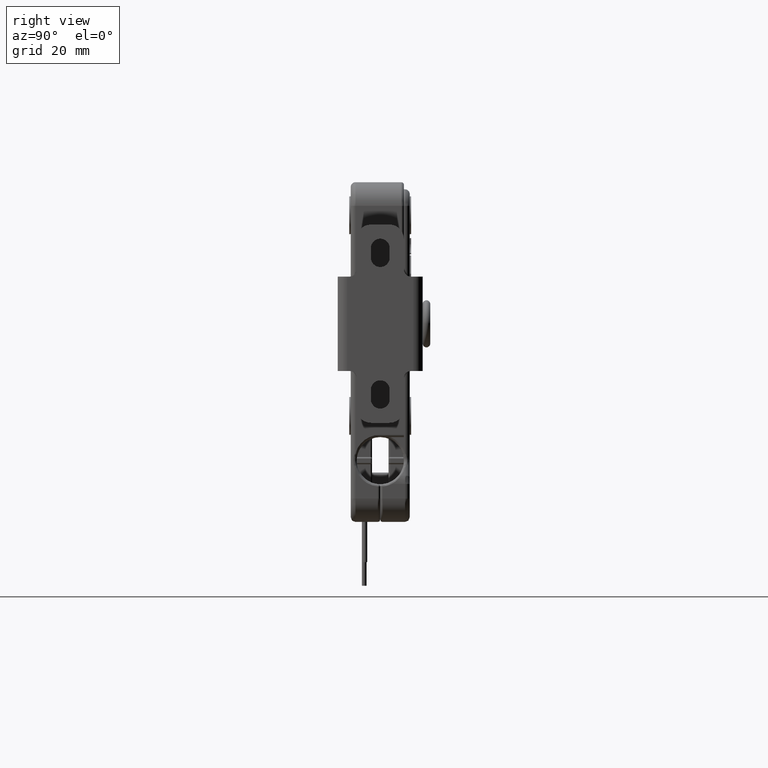
[diagram: clean part render]
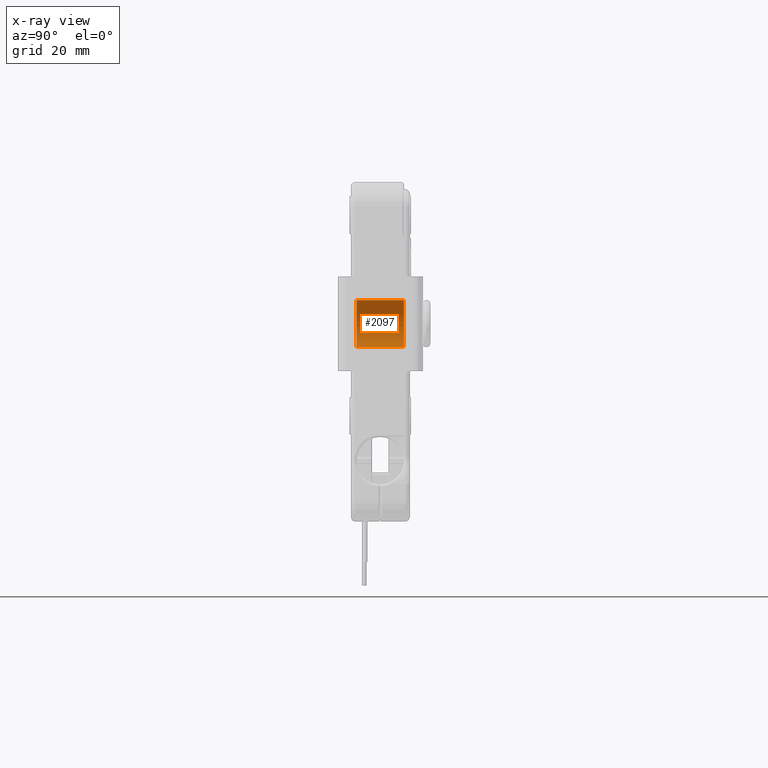
[diagram: x-ray — body ghosted, one internal face saturated and labeled with its STEP entity id]
A machine part, right view, then the same camera in x-ray: the body is ghosted and one INTERNAL B-rep face — a face not visible from any outside direction — is saturated and labeled: STEP entity #2097.
In plain terms, the highlighted cylindrical surface (edge-blend (fillet) strip) has radius 5 mm, axis along (-0, -1, -0).
Its self-contained STEP definition (entity closure, byte-faithful):
#2097=ADVANCED_FACE('',(#22218),#22217,.T.);
#22217=CYLINDRICAL_SURFACE('',#40840,5.00000000000E+00);
#22218=FACE_OUTER_BOUND('',#40841,.T.);
#40837=CARTESIAN_POINT('',(-3.35000000000E+01,-1.00125000000E+03,0.00000000000E+00));
#40838=DIRECTION('',(-0.00000000000E+00,-1.00000000000E+00,-0.00000000000E+00));
#40839=DIRECTION('',(-0.00000000000E+00,-0.00000000000E+00,-1.00000000000E+00));
#40840=AXIS2_PLACEMENT_3D('',#40837,#40838,#40839);
#40841=EDGE_LOOP('',(#52869,#52870,#52871,#52872));
#52869=ORIENTED_EDGE('',*,*,#55229,.T.);
#52870=ORIENTED_EDGE('',*,*,#59265,.T.);
#52871=ORIENTED_EDGE('',*,*,#55318,.F.);
#52872=ORIENTED_EDGE('',*,*,#59266,.F.);
#55229=EDGE_CURVE('',#69124,#69123,#69131,.T.);
#55318=EDGE_CURVE('',#69728,#69729,#69730,.T.);
#59265=EDGE_CURVE('',#69123,#69729,#95810,.T.);
#59266=EDGE_CURVE('',#69124,#69728,#95816,.T.);
#69123=VERTEX_POINT('',#105083);
#69124=VERTEX_POINT('',#105084);
#69131=CIRCLE('',#105092,5.00000000000E+00);
#69728=VERTEX_POINT('',#105471);
#69729=VERTEX_POINT('',#105472);
#69730=CIRCLE('',#105476,5.00000000000E+00);
#95810=(BOUNDED_CURVE() B_SPLINE_CURVE(1,(#121113,#121114),.UNSPECIFIED.,.F.,.F.) B_SPLINE_CURVE_WITH_KNOTS((2,2),(8.33333343261E-02,9.16666667006E-01),.UNSPECIFIED.) CURVE() GEOMETRIC_REPRESENTATION_ITEM() RATIONAL_B_SPLINE_CURVE((1.00000000000E+00,1.00000000000E+00)) REPRESENTATION_ITEM('') );
#95816=(BOUNDED_CURVE() B_SPLINE_CURVE(1,(#121115,#121116),.UNSPECIFIED.,.F.,.F.) B_SPLINE_CURVE_WITH_KNOTS((2,2),(8.33333333333E-02,9.16666666667E-01),.UNSPECIFIED.) CURVE() GEOMETRIC_REPRESENTATION_ITEM() RATIONAL_B_SPLINE_CURVE((7.50000000000E-01,7.50000000000E-01)) REPRESENTATION_ITEM('') );
#105083=CARTESIAN_POINT('',(-3.35000000000E+01,-1.25000000000E+00,-5.00000000000E+00));
#105084=CARTESIAN_POINT('',(-3.35000000000E+01,-1.25000000000E+00,5.00000000000E+00));
#105089=CARTESIAN_POINT('',(-3.35000000000E+01,-1.25000000000E+00,0.00000000000E+00));
#105090=DIRECTION('',(-0.00000000000E+00,-1.00000000000E+00,0.00000000000E+00));
#105091=DIRECTION('',(-1.22460635382E-16,0.00000000000E+00,1.00000000000E+00));
#105092=AXIS2_PLACEMENT_3D('',#105089,#105090,#105091);
#105471=CARTESIAN_POINT('',(-3.35000000000E+01,-1.12500000000E+01,5.00000000000E+00));
#105472=CARTESIAN_POINT('',(-3.35000000000E+01,-1.12500000000E+01,-5.00000000000E+00));
#105473=CARTESIAN_POINT('',(-3.35000000000E+01,-1.12500000000E+01,0.00000000000E+00));
#105474=DIRECTION('',(-0.00000000000E+00,-1.00000000000E+00,0.00000000000E+00));
#105475=DIRECTION('',(-1.22460635382E-16,0.00000000000E+00,1.00000000000E+00));
#105476=AXIS2_PLACEMENT_3D('',#105473,#105474,#105475);
#121113=CARTESIAN_POINT('',(-3.35000000000E+01,-1.25000001191E+00,-5.00000000000E+00));
#121114=CARTESIAN_POINT('',(-3.35000000000E+01,-1.12500000041E+01,-5.00000000000E+00));
#121115=CARTESIAN_POINT('',(-3.35000000000E+01,-1.25000000000E+00,5.00000000000E+00));
#121116=CARTESIAN_POINT('',(-3.35000000000E+01,-1.12500000000E+01,5.00000000000E+00));